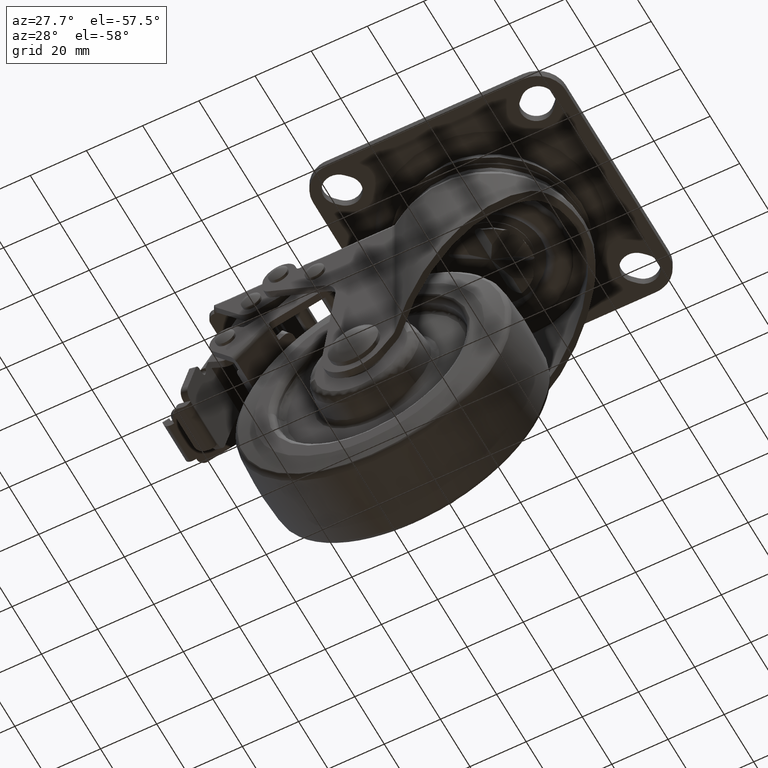
[diagram: clean part render]
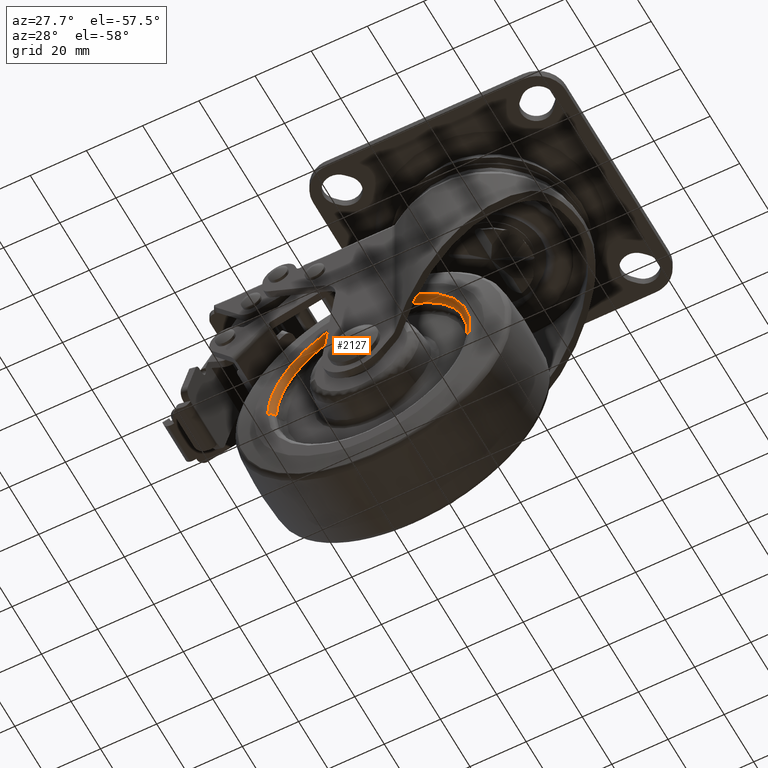
[diagram: same view with one face highlighted and labeled with its STEP entity id]
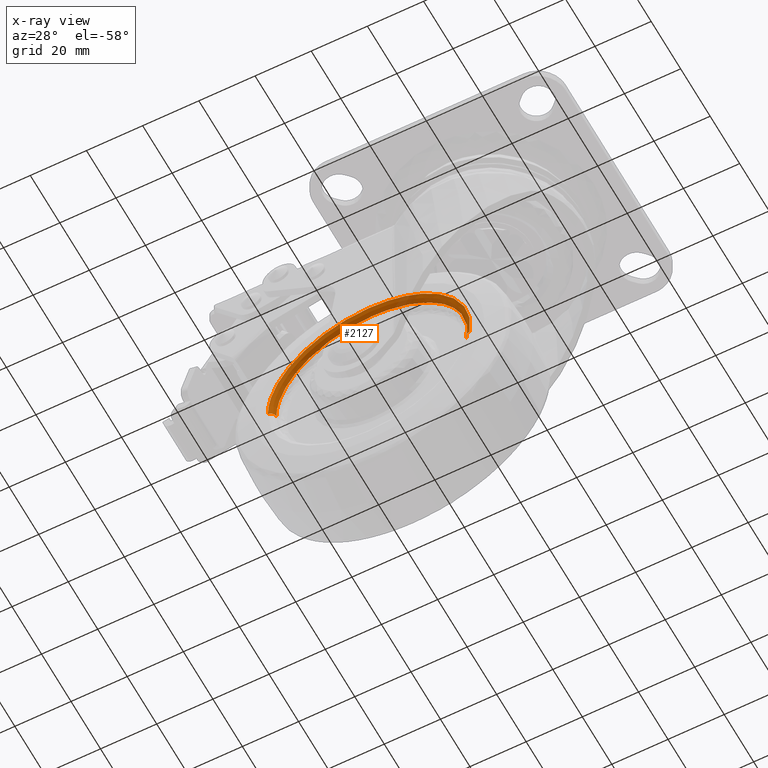
[diagram: x-ray of the same camera — body ghosted, the highlighted face saturated]
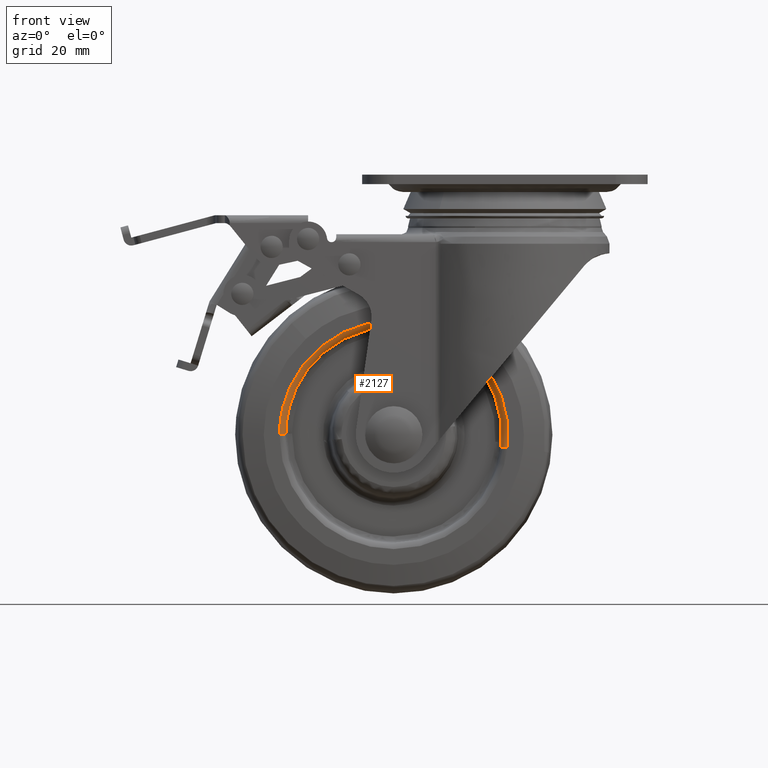
[diagram: same view with one face highlighted and labeled with its STEP entity id]
A machine part, auxiliary view. The second image highlights one B-rep face of the part: STEP entity #2127.
The next image is the same camera in x-ray: the body ghosted, the highlighted face saturated — about 7% of this face is hidden behind the body in this view.
A second angle (front view) of the same face is appended — the face is thin or edge-on in the first view.
In plain terms, the highlighted face is a freeform B-spline surface patch.
Its self-contained STEP definition (entity closure, byte-faithful):
#324=CARTESIAN_POINT('',(-29.562851358572221,-13.999999999838860,-48.397202514842718));
#325=VERTEX_POINT('',#324);
#326=CARTESIAN_POINT('',(-35.0,-14.0,-47.960161999999798));
#327=VERTEX_POINT('',#326);
#328=CARTESIAN_POINT('',(-29.562851358572221,-13.999999999838860,-48.397202514842718));
#329=CARTESIAN_POINT('',(-31.359652184772930,-13.999999999880499,-48.106369302464351));
#330=CARTESIAN_POINT('',(-33.179817276511223,-13.999999999934440,-47.960106435989907));
#331=CARTESIAN_POINT('',(-35.0,-14.0,-47.960161999999798));
#332=B_SPLINE_CURVE_WITH_KNOTS('',3,(#328,#329,#330,#331),.UNSPECIFIED.,.F.,.U.,(4,4),(8.574723E-010,5.460543858287361),.UNSPECIFIED.);
#333=EDGE_CURVE('',#325,#327,#332,.T.);
#335=CARTESIAN_POINT('',(-69.039853000000093,-14.000000001814930,-82.000014999999905));
#336=VERTEX_POINT('',#335);
#337=CARTESIAN_POINT('',(-35.0,-14.0,-47.960161999999798));
#338=CARTESIAN_POINT('',(-37.088682017299483,-13.999999999999950,-47.959914515855552));
#339=CARTESIAN_POINT('',(-39.943084411282193,-14.000000000014110,-48.223744732307310));
#340=CARTESIAN_POINT('',(-44.500144925899491,-14.000000000067789,-49.232367998761013));
#341=CARTESIAN_POINT('',(-48.528898175268708,-14.000000000141810,-50.618273937022053));
#342=CARTESIAN_POINT('',(-52.729111774727933,-14.000000000259631,-52.830446636804233));
#343=CARTESIAN_POINT('',(-56.719762040438013,-14.000000000409520,-55.640905774466788));
#344=CARTESIAN_POINT('',(-60.639563182114813,-14.000000000605940,-59.326969717929117));
#345=CARTESIAN_POINT('',(-63.958574485776637,-14.000000000846249,-63.831185923663647));
#346=CARTESIAN_POINT('',(-66.481798034009103,-14.000000001107461,-68.731307078935089));
#347=CARTESIAN_POINT('',(-67.968379239407057,-14.000000001340190,-73.095905483147504));
#348=CARTESIAN_POINT('',(-68.851555855272849,-14.000000001584739,-77.683471606781154));
#349=CARTESIAN_POINT('',(-69.039907836914267,-14.000000001733520,-80.468331327730937));
#350=CARTESIAN_POINT('',(-69.039853000000093,-14.000000001814930,-82.000014999999905));
#351=B_SPLINE_CURVE_WITH_KNOTS('',3,(#337,#338,#339,#340,#341,#342,#343,#344,#345,#346,#347,#348,#349,#350),.UNSPECIFIED.,.F.,.U.,(4,1,1,1,1,1,1,1,1,1,1,4),(0.000000092977054,6.265986826068868,8.563495765218299,13.994042432587250,19.006851976690509,22.766434499526081,28.614642685679971,35.089524281928377,39.475721057477728,45.115115669894131,48.874704789943642,53.469759935442383),.UNSPECIFIED.);
#352=EDGE_CURVE('',#327,#336,#351,.T.);
#374=CARTESIAN_POINT('',(-1.187817832572982,-14.000000001796920,-85.930400393106453));
#375=VERTEX_POINT('',#374);
#392=CARTESIAN_POINT('',(-9.505657384794009,-13.999999999993570,-59.444525936800517));
#393=VERTEX_POINT('',#392);
#394=CARTESIAN_POINT('',(-1.187817832572982,-14.000000001796920,-85.930400393106453));
#395=CARTESIAN_POINT('',(-0.903676862822082,-14.000000001592840,-83.489491457344272));
#396=CARTESIAN_POINT('',(-0.875901604801273,-14.000000001288660,-79.669611933693730));
#397=CARTESIAN_POINT('',(-1.671938269606898,-14.000000000925461,-74.735511097262119));
#398=CARTESIAN_POINT('',(-2.751679161569376,-14.000000000656170,-70.856318479367175));
#399=CARTESIAN_POINT('',(-4.367283149981672,-14.000000000402499,-66.921416325041946));
#400=CARTESIAN_POINT('',(-6.646083236967771,-14.000000000171610,-62.979520192125619));
#401=CARTESIAN_POINT('',(-8.518782153961169,-14.000000000046160,-60.559916450531098));
#402=CARTESIAN_POINT('',(-9.505657384794009,-13.999999999993570,-59.444525936800517));
#403=B_SPLINE_CURVE_WITH_KNOTS('',3,(#394,#395,#396,#397,#398,#399,#400,#401,#402),.UNSPECIFIED.,.F.,.U.,(4,1,1,1,1,1,4),(0.000000027518286,7.372068185621160,11.393215856999641,14.967511500653620,19.435439178209791,24.126778595762971,28.594684603996502),.UNSPECIFIED.);
#404=EDGE_CURVE('',#375,#393,#403,.T.);
#515=CARTESIAN_POINT('',(-9.505657384794009,-13.999999999993570,-59.444525936800517));
#516=CARTESIAN_POINT('',(-10.553373615642270,-13.999999999937280,-58.260209526086527));
#517=CARTESIAN_POINT('',(-13.031614119669930,-13.999999999833101,-55.824238050799131));
#518=CARTESIAN_POINT('',(-16.795427103223659,-13.999999999753539,-53.114071573892552));
#519=CARTESIAN_POINT('',(-20.663993919929350,-13.999999999729029,-51.050529732651050));
#520=CARTESIAN_POINT('',(-24.680649451363209,-13.999999999746230,-49.445398415708560));
#521=CARTESIAN_POINT('',(-27.761739307776541,-13.999999999797129,-48.688490654637313));
#522=CARTESIAN_POINT('',(-29.562851358572221,-13.999999999838860,-48.397202514842718));
#523=B_SPLINE_CURVE_WITH_KNOTS('',3,(#515,#516,#517,#518,#519,#520,#521,#522),.UNSPECIFIED.,.F.,.U.,(4,1,1,1,1,4),(0.000000018478598,4.743720324797558,10.399701859831440,13.866258303404891,17.880181336508269,23.353704097486350),.UNSPECIFIED.);
#524=EDGE_CURVE('',#393,#325,#523,.T.);
#2030=CARTESIAN_POINT('',(0.936582322210230,-15.995184495239597,-86.177340162685311));
#2031=CARTESIAN_POINT('',(1.178557109367941,-15.995184495239590,-84.095685869582056));
#2032=CARTESIAN_POINT('',(1.178557109367941,-15.995184495239599,-82.000014999999891));
#2033=CARTESIAN_POINT('',(1.178557109367948,-15.995184495239592,-45.821457890631976));
#2034=CARTESIAN_POINT('',(-34.999999999999986,-15.995184495239599,-45.821457890631969));
#2035=CARTESIAN_POINT('',(-71.178557109367944,-15.995184495239592,-45.821457890631962));
#2036=CARTESIAN_POINT('',(-71.178557109367929,-15.995184495239599,-82.000014999999877));
#2037=CARTESIAN_POINT('',(-1.342256459976439,-16.154674818686559,-85.912444338670127));
#2038=CARTESIAN_POINT('',(-1.115625968064788,-16.154674818686559,-83.962793542496442));
#2039=CARTESIAN_POINT('',(-1.115625968064788,-16.154674818686555,-82.000014999999891));
#2040=CARTESIAN_POINT('',(-1.115625968064780,-16.154674818686551,-48.115640968064703));
#2041=CARTESIAN_POINT('',(-34.999999999999993,-16.154674818686555,-48.115640968064682));
#2042=CARTESIAN_POINT('',(-68.884374031935167,-16.154674818686551,-48.115640968064689));
#2043=CARTESIAN_POINT('',(-68.884374031935209,-16.154674818686555,-82.000014999999891));
#2044=CARTESIAN_POINT('',(-1.182982544286708,-13.860551413481161,-85.930958590520945));
#2045=CARTESIAN_POINT('',(-0.955279600033785,-13.860551413481158,-83.972081729736999));
#2046=CARTESIAN_POINT('',(-0.955279600033784,-13.860551413481167,-82.000014999999905));
#2047=CARTESIAN_POINT('',(-0.955279600033777,-13.860551413481161,-47.955294600033696));
#2048=CARTESIAN_POINT('',(-34.999999999999986,-13.860551413481167,-47.955294600033675));
#2049=CARTESIAN_POINT('',(-69.044720399966195,-13.860551413481161,-47.955294600033682));
#2050=CARTESIAN_POINT('',(-69.044720399966224,-13.860551413481167,-82.000014999999891));
#2058=(BOUNDED_SURFACE()B_SPLINE_SURFACE(2,2,((#2030,#2037,#2044),(#2031,#2038,#2045),(#2032,#2039,#2046),(#2033,#2040,#2047),(#2034,#2041,#2048),(#2035,#2042,#2049),(#2036,#2043,#2050)),.UNSPECIFIED.,.F.,.F.,.U.)B_SPLINE_SURFACE_WITH_KNOTS((3,2,2,3),(3,3),(0.0,4.795403113715573,64.737999200874597,124.680595288033600),(0.0,3.644744496143637),.UNSPECIFIED.)GEOMETRIC_REPRESENTATION_ITEM()RATIONAL_B_SPLINE_SURFACE(((0.870832237771331,0.569876075646284,0.866008016454272),(0.888744584257321,0.581597986340790,0.883821132434077),(0.910068802390860,0.595552639394593,0.905027219034092),(0.643515821516897,0.421119309869464,0.639950883737409),(0.910068802390860,0.595552639394593,0.905027219034092),(0.643515821516897,0.421119309869464,0.639950883737409),(0.910068802390860,0.595552639394593,0.905027219034092)))REPRESENTATION_ITEM('')SURFACE());
#2059=CARTESIAN_POINT('',(0.798805436455121,-16.0,-86.161328851046193));
#2060=VERTEX_POINT('',#2059);
#2061=CARTESIAN_POINT('',(-35.0,-16.0,-45.960161999999812));
#2062=VERTEX_POINT('',#2061);
#2063=CARTESIAN_POINT('',(0.798805436455121,-16.0,-86.161328851046193));
#2064=CARTESIAN_POINT('',(1.064085307629404,-15.999999999999970,-83.881553103942395));
#2065=CARTESIAN_POINT('',(1.139088067629203,-16.000000000000028,-80.145622812515924));
#2066=CARTESIAN_POINT('',(0.372964860903579,-15.999999999999989,-74.488913285135411));
#2067=CARTESIAN_POINT('',(-0.969932590701029,-16.000000000000050,-69.752067304259029));
#2068=CARTESIAN_POINT('',(-2.915349659291488,-15.999999999999890,-65.410047387492511));
#2069=CARTESIAN_POINT('',(-5.062294827748251,-15.999999999999950,-61.799763391491673));
#2070=CARTESIAN_POINT('',(-8.078800380268508,-16.000000000000121,-57.818705678244690));
#2071=CARTESIAN_POINT('',(-12.083908226299179,-15.999999999999750,-53.954566438837617));
#2072=CARTESIAN_POINT('',(-16.747038881246102,-16.000000000000529,-50.790383142246021));
#2073=CARTESIAN_POINT('',(-20.517013493906330,-15.999999999999419,-48.932694191650377));
#2074=CARTESIAN_POINT('',(-24.150133920117199,-16.000000000000352,-47.569121164904828));
#2075=CARTESIAN_POINT('',(-28.747825042006330,-15.999999999999620,-46.344860361143873));
#2076=CARTESIAN_POINT('',(-32.625691911361692,-16.000000000000231,-45.959816441773292));
#2077=CARTESIAN_POINT('',(-35.0,-16.0,-45.960161999999812));
#2078=B_SPLINE_CURVE_WITH_KNOTS('',3,(#2063,#2064,#2065,#2066,#2067,#2068,#2069,#2070,#2071,#2072,#2073,#2074,#2075,#2076,#2077),.UNSPECIFIED.,.F.,.U.,(4,1,1,1,1,1,1,1,1,1,1,1,4),(0.000000097017796,6.885421680934250,11.159175213164740,17.094937373889739,21.606107323981991,25.404978170128469,29.678766118866879,36.564124434703352,42.025032826076213,46.536219691655987,49.147959458062317,53.659145321733099,60.781994824091342),.UNSPECIFIED.);
#2079=EDGE_CURVE('',#2060,#2062,#2078,.T.);
#2080=ORIENTED_EDGE('',*,*,#2079,.T.);
#2081=CARTESIAN_POINT('',(-71.039852999977143,-16.0,-82.000014999999905));
#2082=VERTEX_POINT('',#2081);
#2083=CARTESIAN_POINT('',(-35.0,-16.0,-45.960161999999812));
#2084=CARTESIAN_POINT('',(-37.211378104418500,-16.000000000000011,-45.959935699211918));
#2085=CARTESIAN_POINT('',(-41.191779492260927,-15.999999999999980,-46.327689742445131));
#2086=CARTESIAN_POINT('',(-46.480675019908247,-15.999999999999989,-47.721742034822299));
#2087=CARTESIAN_POINT('',(-51.461552211963152,-16.000000000000082,-49.784773693847598));
#2088=CARTESIAN_POINT('',(-55.389809057981303,-15.999999999999931,-52.155648909216239));
#2089=CARTESIAN_POINT('',(-59.027144530099072,-15.999999999999950,-55.048733713667232));
#2090=CARTESIAN_POINT('',(-62.242505036085909,-15.999999999999901,-58.205248234005147));
#2091=CARTESIAN_POINT('',(-65.498811037234717,-16.000000000000082,-62.512338776543537));
#2092=CARTESIAN_POINT('',(-67.889570894005189,-15.999999999999920,-67.018577776055423));
#2093=CARTESIAN_POINT('',(-69.471231061406129,-16.000000000000011,-71.234245065998650));
#2094=CARTESIAN_POINT('',(-70.688082220312310,-16.000000000000160,-76.029402508688989));
#2095=CARTESIAN_POINT('',(-71.040141384975954,-15.999999999999529,-79.714913121285335));
#2096=CARTESIAN_POINT('',(-71.039852999977143,-16.0,-82.000014999999905));
#2097=B_SPLINE_CURVE_WITH_KNOTS('',3,(#2083,#2084,#2085,#2086,#2087,#2088,#2089,#2090,#2091,#2092,#2093,#2094,#2095,#2096),.UNSPECIFIED.,.F.,.U.,(4,1,1,1,1,1,1,1,1,1,1,4),(0.000000091363539,6.634106691384986,11.941458342994530,16.364231403081071,22.777269106973531,25.652076889620758,30.295870470252389,36.266644610084882,41.795103214403362,45.554467779349928,49.756112977685952,56.611357517253083),.UNSPECIFIED.);
#2098=EDGE_CURVE('',#2062,#2082,#2097,.T.);
#2099=ORIENTED_EDGE('',*,*,#2098,.T.);
#2100=CARTESIAN_POINT('',(-71.039852999977143,-16.0,-82.000014999999905));
#2101=CARTESIAN_POINT('',(-70.745240706016688,-16.000460632296200,-82.000014999999834));
#2102=CARTESIAN_POINT('',(-70.271142554910313,-15.893203361546471,-82.000014999999934));
#2103=CARTESIAN_POINT('',(-69.759091915926405,-15.559921340404561,-82.000014999999919));
#2104=CARTESIAN_POINT('',(-69.441675257003936,-15.226500592730151,-82.000014999999905));
#2105=CARTESIAN_POINT('',(-69.139287013667513,-14.735996245946559,-82.000014999999507));
#2106=CARTESIAN_POINT('',(-69.039374248389919,-14.294625787889890,-82.000015000001113));
#2107=CARTESIAN_POINT('',(-69.039853000000093,-14.000000001814930,-82.000014999999905));
#2108=B_SPLINE_CURVE_WITH_KNOTS('',3,(#2100,#2101,#2102,#2103,#2104,#2105,#2106,#2107),.UNSPECIFIED.,.F.,.U.,(4,1,1,1,1,4),(0.000000381257824,0.883600373393830,1.423571784755063,1.816237615012986,2.258071495974353,3.141671488114154),.UNSPECIFIED.);
#2109=EDGE_CURVE('',#2082,#336,#2108,.T.);
#2110=ORIENTED_EDGE('',*,*,#2109,.T.);
#2111=ORIENTED_EDGE('',*,*,#352,.F.);
#2112=ORIENTED_EDGE('',*,*,#333,.F.);
#2113=ORIENTED_EDGE('',*,*,#524,.F.);
#2114=ORIENTED_EDGE('',*,*,#404,.F.);
#2115=CARTESIAN_POINT('',(0.798805436455121,-16.0,-86.161328851046193));
#2116=CARTESIAN_POINT('',(0.473623510490907,-16.000693603816860,-86.123529152481680));
#2117=CARTESIAN_POINT('',(-0.094595497163678,-15.856183273555560,-86.057478411367470));
#2118=CARTESIAN_POINT('',(-0.688171389075087,-15.377772456251860,-85.988480143033470));
#2119=CARTESIAN_POINT('',(-1.081704015325428,-14.768651178188779,-85.942735243164805));
#2120=CARTESIAN_POINT('',(-1.188254113849162,-14.294625613674880,-85.930349679023280));
#2121=CARTESIAN_POINT('',(-1.187817832572982,-14.000000001796920,-85.930400393106453));
#2122=B_SPLINE_CURVE_WITH_KNOTS('',3,(#2115,#2116,#2117,#2118,#2119,#2120,#2121),.UNSPECIFIED.,.F.,.U.,(4,1,1,1,4),(0.000000381267369,0.981779431249223,1.718100082993724,2.258071493877541,3.141671485206815),.UNSPECIFIED.);
#2123=EDGE_CURVE('',#2060,#375,#2122,.T.);
#2124=ORIENTED_EDGE('',*,*,#2123,.F.);
#2125=EDGE_LOOP('',(#2080,#2099,#2110,#2111,#2112,#2113,#2114,#2124));
#2126=FACE_OUTER_BOUND('',#2125,.T.);
#2127=ADVANCED_FACE('',(#2126),#2058,.T.);